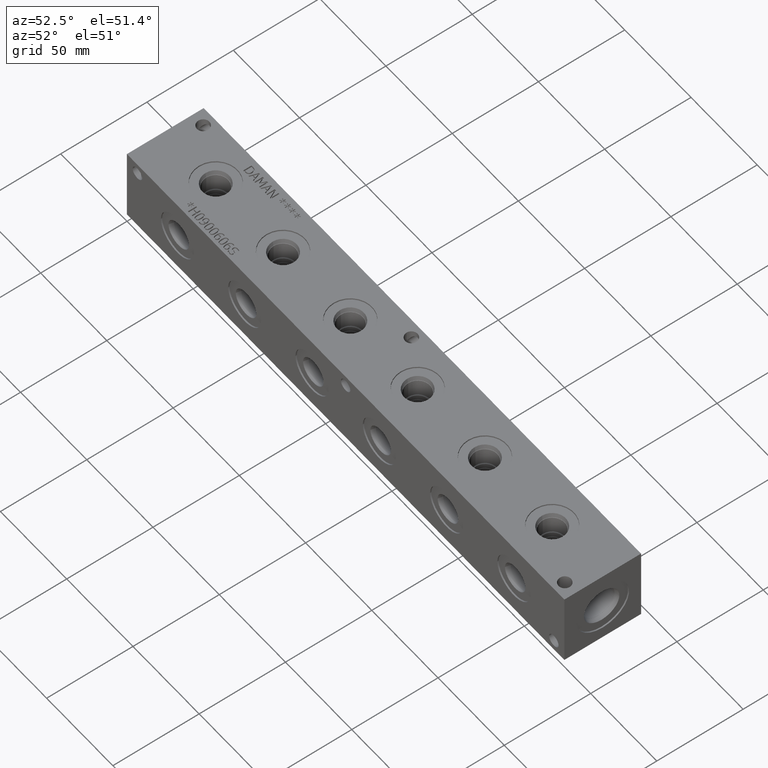
[diagram: clean part render]
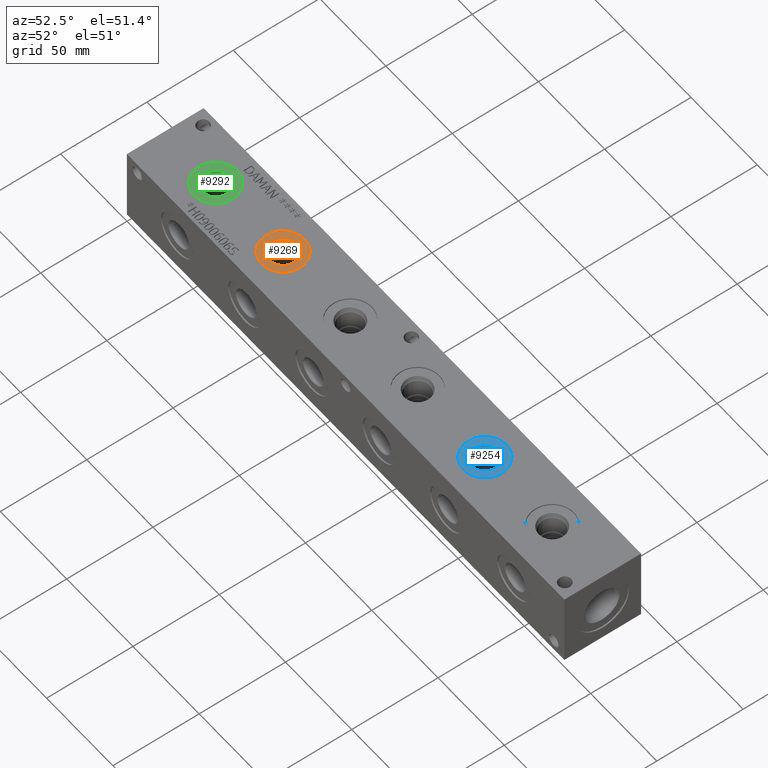
[diagram: same view with three faces highlighted in distinct colors, each labeled with its STEP entity id]
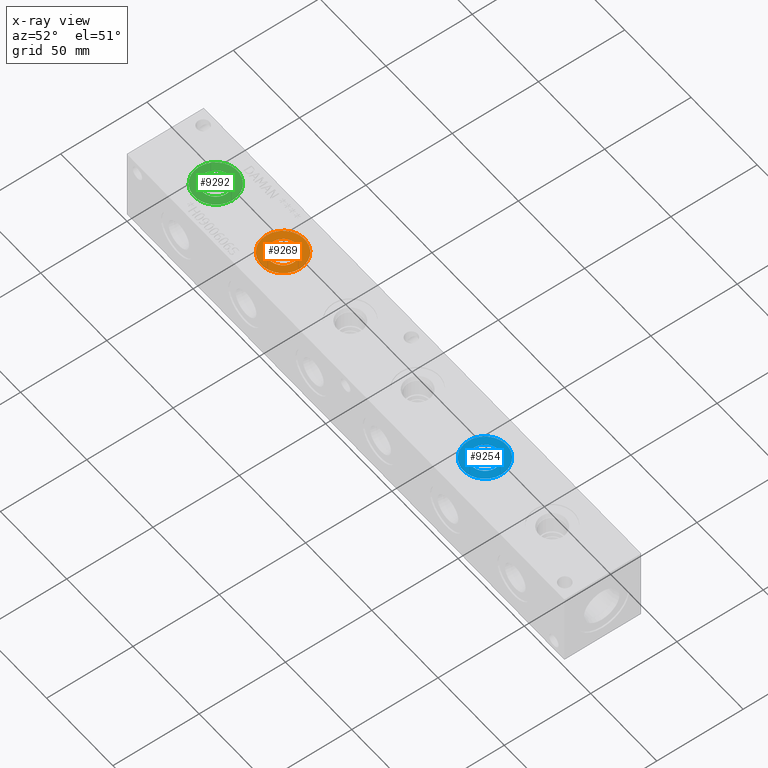
[diagram: x-ray of the same camera — body ghosted, the three highlighted faces saturated]
A machine part, auxiliary view with three faces highlighted in distinct colors.
The next image is the same camera in x-ray (body ghosted, the three faces saturated) — at least one of them is partly hidden behind the body in this view.
Their STEP definitions:

[orange] entity #9269 — the highlighted planar face has unit normal (0, 0, -1).
#350=CIRCLE('',#9845,12.5095);
#351=CIRCLE('',#9846,12.5095);
#352=CIRCLE('',#9848,7.79780000000001);
#353=CIRCLE('',#9849,7.79780000000001);
#480=FACE_BOUND('',#1888,.T.);
#1352=FACE_OUTER_BOUND('',#1887,.T.);
#1887=EDGE_LOOP('',(#8010,#8011));
#1888=EDGE_LOOP('',(#8012,#8013));
#4269=VERTEX_POINT('',#16330);
#4270=VERTEX_POINT('',#16332);
#4271=VERTEX_POINT('',#16336);
#4272=VERTEX_POINT('',#16337);
#5548=EDGE_CURVE('',#4269,#4270,#350,.T.);
#5549=EDGE_CURVE('',#4270,#4269,#351,.T.);
#5550=EDGE_CURVE('',#4271,#4272,#352,.T.);
#5551=EDGE_CURVE('',#4272,#4271,#353,.T.);
#8010=ORIENTED_EDGE('',*,*,#5549,.F.);
#8011=ORIENTED_EDGE('',*,*,#5548,.F.);
#8012=ORIENTED_EDGE('',*,*,#5550,.T.);
#8013=ORIENTED_EDGE('',*,*,#5551,.T.);
#8513=PLANE('',#9847);
#9269=ADVANCED_FACE('',(#1352,#480),#8513,.F.);
#9845=AXIS2_PLACEMENT_3D('',#16333,#11691,#11692);
#9846=AXIS2_PLACEMENT_3D('',#16334,#11693,#11694);
#9847=AXIS2_PLACEMENT_3D('',#16335,#11695,#11696);
#9848=AXIS2_PLACEMENT_3D('',#16338,#11697,#11698);
#9849=AXIS2_PLACEMENT_3D('',#16339,#11699,#11700);
#11691=DIRECTION('center_axis',(0.,0.,-1.));
#11692=DIRECTION('ref_axis',(1.,0.,0.));
#11693=DIRECTION('center_axis',(0.,0.,-1.));
#11694=DIRECTION('ref_axis',(1.,0.,0.));
#11695=DIRECTION('center_axis',(0.,0.,-1.));
#11696=DIRECTION('ref_axis',(-1.,0.,0.));
#11697=DIRECTION('center_axis',(0.,0.,-1.));
#11698=DIRECTION('ref_axis',(1.,0.,0.));
#11699=DIRECTION('center_axis',(0.,0.,-1.));
#11700=DIRECTION('ref_axis',(1.,0.,0.));
#16330=CARTESIAN_POINT('',(76.3905,22.225,43.6626));
#16332=CARTESIAN_POINT('',(101.4095,22.225,43.6626));
#16333=CARTESIAN_POINT('Origin',(88.9,22.225,43.6626));
#16334=CARTESIAN_POINT('Origin',(88.9,22.225,43.6626));
#16335=CARTESIAN_POINT('Origin',(96.6978,22.225,43.6626));
#16336=CARTESIAN_POINT('',(96.6978,22.225,43.6626));
#16337=CARTESIAN_POINT('',(81.1022,22.225,43.6626));
#16338=CARTESIAN_POINT('Origin',(88.9,22.225,43.6626));
#16339=CARTESIAN_POINT('Origin',(88.9,22.225,43.6626));

[blue] entity #9254 — the highlighted planar face has unit normal (0, 0, -1).
#323=CIRCLE('',#9803,12.5095);
#324=CIRCLE('',#9804,12.5095);
#325=CIRCLE('',#9806,7.79779999999999);
#326=CIRCLE('',#9807,7.79779999999999);
#477=FACE_BOUND('',#1870,.T.);
#1337=FACE_OUTER_BOUND('',#1869,.T.);
#1869=EDGE_LOOP('',(#7929,#7930));
#1870=EDGE_LOOP('',(#7931,#7932));
#4242=VERTEX_POINT('',#16249);
#4243=VERTEX_POINT('',#16251);
#4244=VERTEX_POINT('',#16255);
#4245=VERTEX_POINT('',#16256);
#5509=EDGE_CURVE('',#4242,#4243,#323,.T.);
#5510=EDGE_CURVE('',#4243,#4242,#324,.T.);
#5511=EDGE_CURVE('',#4244,#4245,#325,.T.);
#5512=EDGE_CURVE('',#4245,#4244,#326,.T.);
#7929=ORIENTED_EDGE('',*,*,#5510,.F.);
#7930=ORIENTED_EDGE('',*,*,#5509,.F.);
#7931=ORIENTED_EDGE('',*,*,#5511,.T.);
#7932=ORIENTED_EDGE('',*,*,#5512,.T.);
#8510=PLANE('',#9805);
#9254=ADVANCED_FACE('',(#1337,#477),#8510,.F.);
#9803=AXIS2_PLACEMENT_3D('',#16252,#11595,#11596);
#9804=AXIS2_PLACEMENT_3D('',#16253,#11597,#11598);
#9805=AXIS2_PLACEMENT_3D('',#16254,#11599,#11600);
#9806=AXIS2_PLACEMENT_3D('',#16257,#11601,#11602);
#9807=AXIS2_PLACEMENT_3D('',#16258,#11603,#11604);
#11595=DIRECTION('center_axis',(0.,0.,-1.));
#11596=DIRECTION('ref_axis',(1.,0.,0.));
#11597=DIRECTION('center_axis',(0.,0.,-1.));
#11598=DIRECTION('ref_axis',(1.,0.,0.));
#11599=DIRECTION('center_axis',(0.,0.,-1.));
#11600=DIRECTION('ref_axis',(-1.,0.,0.));
#11601=DIRECTION('center_axis',(0.,0.,-1.));
#11602=DIRECTION('ref_axis',(1.,0.,0.));
#11603=DIRECTION('center_axis',(0.,0.,-1.));
#11604=DIRECTION('ref_axis',(1.,0.,0.));
#16249=CARTESIAN_POINT('',(228.7905,22.225,43.6626));
#16251=CARTESIAN_POINT('',(253.8095,22.225,43.6626));
#16252=CARTESIAN_POINT('Origin',(241.3,22.225,43.6626));
#16253=CARTESIAN_POINT('Origin',(241.3,22.225,43.6626));
#16254=CARTESIAN_POINT('Origin',(249.0978,22.225,43.6626));
#16255=CARTESIAN_POINT('',(249.0978,22.225,43.6626));
#16256=CARTESIAN_POINT('',(233.5022,22.225,43.6626));
#16257=CARTESIAN_POINT('Origin',(241.3,22.225,43.6626));
#16258=CARTESIAN_POINT('Origin',(241.3,22.225,43.6626));

[green] entity #9292 — the highlighted planar face has unit normal (0, 0, -1).
#378=CIRCLE('',#9896,12.5095);
#379=CIRCLE('',#9897,12.5095);
#380=CIRCLE('',#9899,7.7978);
#381=CIRCLE('',#9900,7.7978);
#487=FACE_BOUND('',#1918,.T.);
#1375=FACE_OUTER_BOUND('',#1917,.T.);
#1917=EDGE_LOOP('',(#8121,#8122));
#1918=EDGE_LOOP('',(#8123,#8124));
#4297=VERTEX_POINT('',#16425);
#4298=VERTEX_POINT('',#16427);
#4299=VERTEX_POINT('',#16431);
#4300=VERTEX_POINT('',#16432);
#5592=EDGE_CURVE('',#4297,#4298,#378,.T.);
#5593=EDGE_CURVE('',#4298,#4297,#379,.T.);
#5594=EDGE_CURVE('',#4299,#4300,#380,.T.);
#5595=EDGE_CURVE('',#4300,#4299,#381,.T.);
#8121=ORIENTED_EDGE('',*,*,#5593,.F.);
#8122=ORIENTED_EDGE('',*,*,#5592,.F.);
#8123=ORIENTED_EDGE('',*,*,#5594,.T.);
#8124=ORIENTED_EDGE('',*,*,#5595,.T.);
#8520=PLANE('',#9898);
#9292=ADVANCED_FACE('',(#1375,#487),#8520,.F.);
#9896=AXIS2_PLACEMENT_3D('',#16428,#11809,#11810);
#9897=AXIS2_PLACEMENT_3D('',#16429,#11811,#11812);
#9898=AXIS2_PLACEMENT_3D('',#16430,#11813,#11814);
#9899=AXIS2_PLACEMENT_3D('',#16433,#11815,#11816);
#9900=AXIS2_PLACEMENT_3D('',#16434,#11817,#11818);
#11809=DIRECTION('center_axis',(0.,0.,-1.));
#11810=DIRECTION('ref_axis',(1.,0.,0.));
#11811=DIRECTION('center_axis',(0.,0.,-1.));
#11812=DIRECTION('ref_axis',(1.,0.,0.));
#11813=DIRECTION('center_axis',(0.,0.,-1.));
#11814=DIRECTION('ref_axis',(-1.,0.,0.));
#11815=DIRECTION('center_axis',(0.,0.,-1.));
#11816=DIRECTION('ref_axis',(1.,0.,0.));
#11817=DIRECTION('center_axis',(0.,0.,-1.));
#11818=DIRECTION('ref_axis',(1.,0.,0.));
#16425=CARTESIAN_POINT('',(25.5905,22.225,43.6626));
#16427=CARTESIAN_POINT('',(50.6095,22.225,43.6626));
#16428=CARTESIAN_POINT('Origin',(38.1,22.225,43.6626));
#16429=CARTESIAN_POINT('Origin',(38.1,22.225,43.6626));
#16430=CARTESIAN_POINT('Origin',(45.8978,22.225,43.6626));
#16431=CARTESIAN_POINT('',(45.8978,22.225,43.6626));
#16432=CARTESIAN_POINT('',(30.3022,22.225,43.6626));
#16433=CARTESIAN_POINT('Origin',(38.1,22.225,43.6626));
#16434=CARTESIAN_POINT('Origin',(38.1,22.225,43.6626));